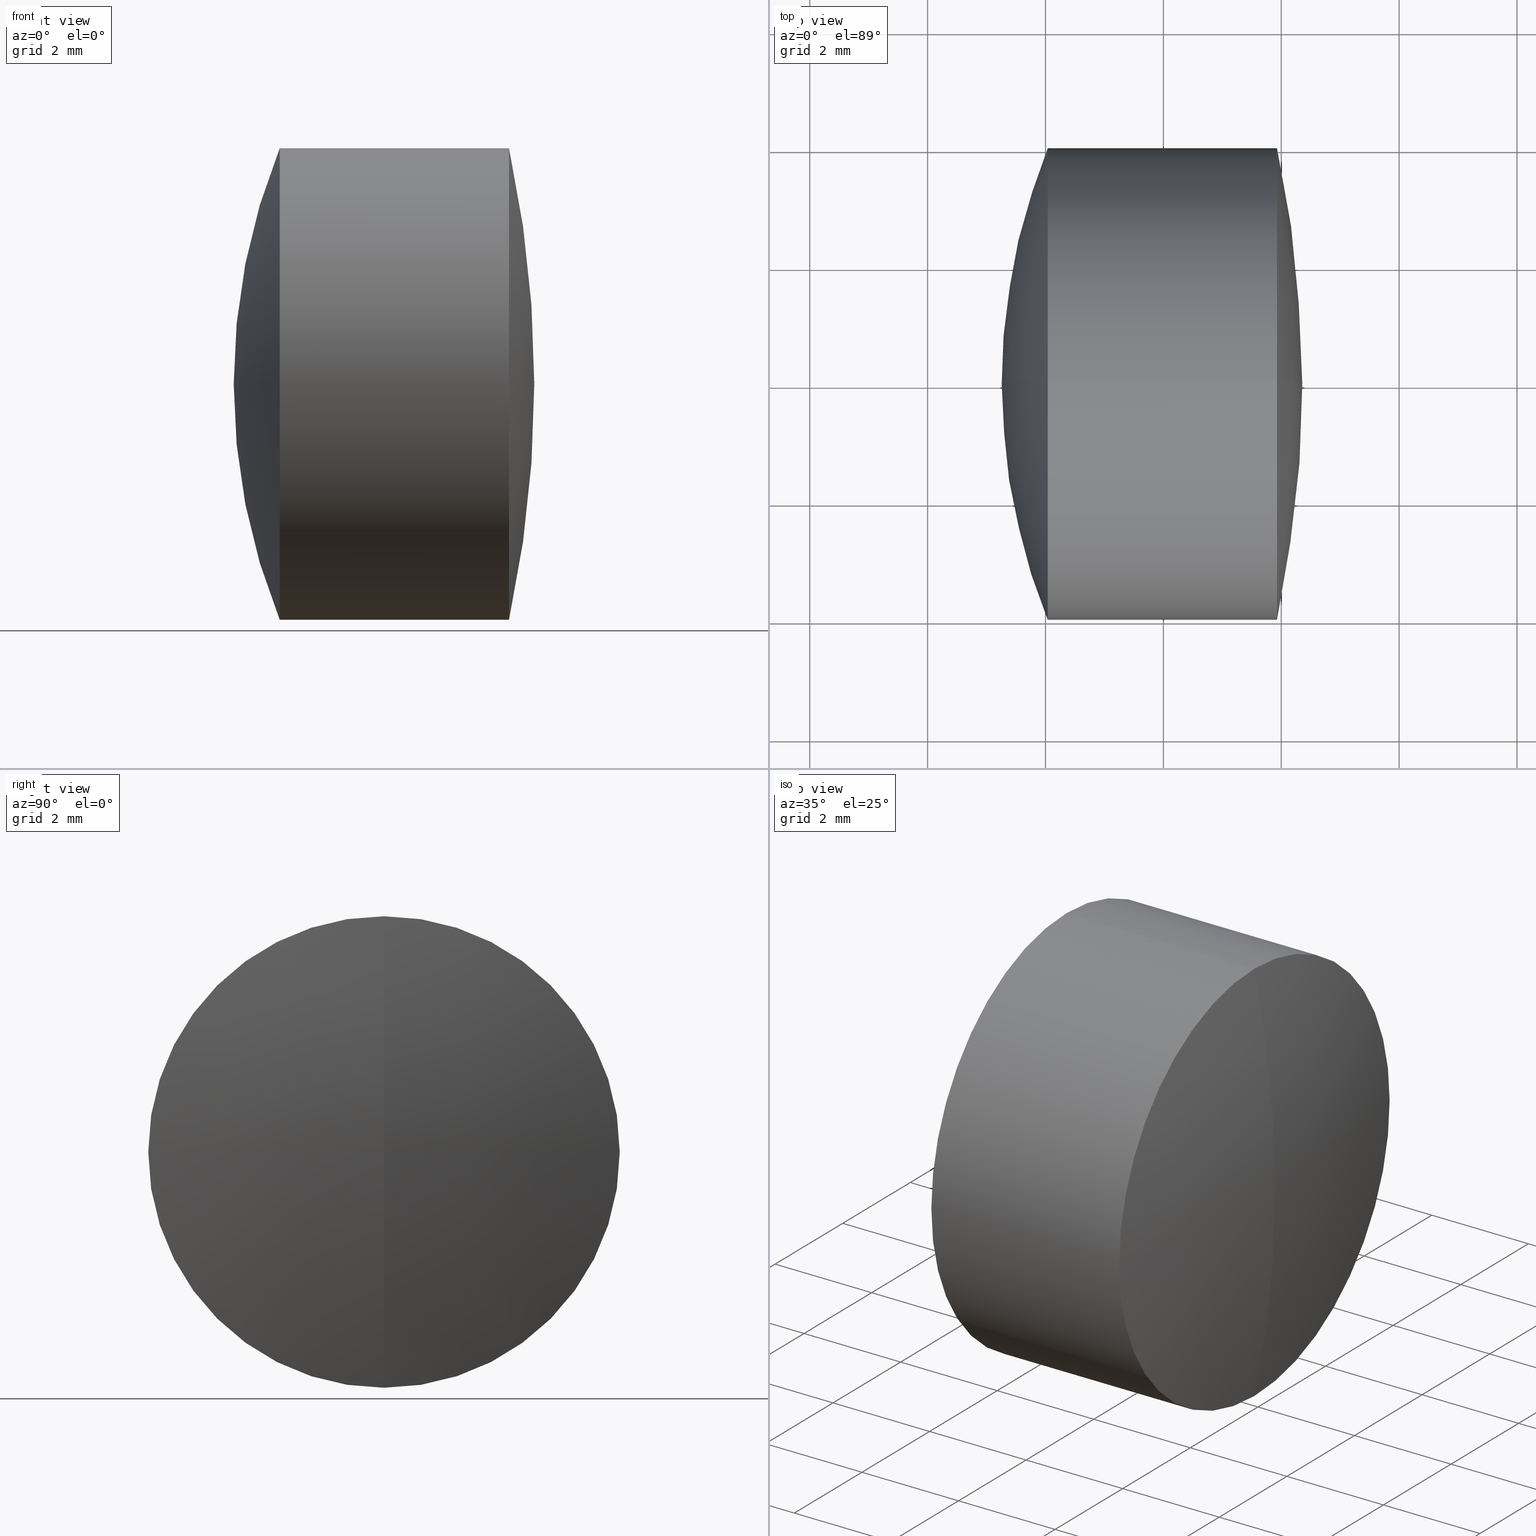
[diagram: canonical four-view strip — front | top / right | iso, engineering-drawing reading convention]
A machine part, canonical four-view strip (front | top / right | iso — engineering-drawing reading convention). The complete STEP part file that produces these views, byte-faithful:
ISO-10303-21;
HEADER;
FILE_DESCRIPTION (( 'STEP AP214' ),
    '1' );
FILE_NAME ('145016.STEP',
    '2019-05-08T07:21:51',
    ( 'user' ),
    ( '΢���й�' ),
    'SwSTEP 2.0',
    'SolidWorks 2016',
    '' );
FILE_SCHEMA (( 'AUTOMOTIVE_DESIGN' ));
ENDSEC;

DATA;
#1 = VERTEX_POINT ( 'NONE', #6 ) ;
#2 = CARTESIAN_POINT ( 'NONE',  ( -0.5519199926577972300, 0.0000000000000000000, 0.0000000000000000000 ) ) ;
#3 = AXIS2_PLACEMENT_3D ( 'NONE', #2, #330, #309 ) ;
#4 = DIRECTION ( 'NONE',  ( -1.000000000000000000, -0.0000000000000000000, -0.0000000000000000000 ) ) ;
#5 = SPHERICAL_SURFACE ( 'NONE', #113, 7.066000000000000700 ) ;
#6 = CARTESIAN_POINT ( 'NONE',  ( 2.356824329195886100, 0.0000000000000000000, 1.155393022655570300E-015 ) ) ;
#7 = DIRECTION ( 'NONE',  ( 0.0000000000000000000, 0.0000000000000000000, 1.000000000000000000 ) ) ;
#8 = DIRECTION ( 'NONE',  ( 0.0000000000000000000, 0.0000000000000000000, 1.000000000000000000 ) ) ;
#9 = DIRECTION ( 'NONE',  ( -0.0000000000000000000, 1.000000000000000000, 1.224646799147353200E-016 ) ) ;
#10 =( NAMED_UNIT ( * ) SI_UNIT ( $, .STERADIAN. ) SOLID_ANGLE_UNIT ( ) );
#11 = EDGE_LOOP ( 'NONE', ( #147, #213, #43 ) ) ;
#12 = MECHANICAL_DESIGN_GEOMETRIC_PRESENTATION_REPRESENTATION (  '', ( #151 ), #231 ) ;
#13 = ORIENTED_EDGE ( 'NONE', *, *, #90, .F. ) ;
#14 = DIRECTION ( 'NONE',  ( 0.0000000000000000000, 0.0000000000000000000, 1.000000000000000000 ) ) ;
#15 = CARTESIAN_POINT ( 'NONE',  ( -0.5519199926577972300, 0.0000000000000000000, 4.000000000000000900 ) ) ;
#16 = SPHERICAL_SURFACE ( 'NONE', #197, 10.64199999999999900 ) ;
#17 = EDGE_CURVE ( 'NONE', #118, #256, #261, .T. ) ;
#18 = FACE_OUTER_BOUND ( 'NONE', #26, .T. ) ;
#19 = DIRECTION ( 'NONE',  ( 0.0000000000000000000, 0.0000000000000000000, 1.000000000000000000 ) ) ;
#20 = ORIENTED_EDGE ( 'NONE', *, *, #61, .T. ) ;
#21 = ADVANCED_FACE ( 'NONE', ( #125 ), #276, .T. ) ;
#22 = AXIS2_PLACEMENT_3D ( 'NONE', #40, #92, #162 ) ;
#23 = ORIENTED_EDGE ( 'NONE', *, *, #265, .F. ) ;
#24 = DIRECTION ( 'NONE',  ( -1.000000000000000000, -0.0000000000000000000, -0.0000000000000000000 ) ) ;
#25 = EDGE_CURVE ( 'NONE', #118, #207, #69, .T. ) ;
#26 = EDGE_LOOP ( 'NONE', ( #280, #121, #179, #341 ) ) ;
#27 = CIRCLE ( 'NONE', #76, 4.000000000000000000 ) ;
#28 = EDGE_CURVE ( 'NONE', #207, #118, #103, .T. ) ;
#29 = PRESENTATION_STYLE_ASSIGNMENT (( #108 ) ) ;
#30 = FILL_AREA_STYLE_COLOUR ( '', #334 ) ;
#31 = SHAPE_DEFINITION_REPRESENTATION ( #102, #304 ) ;
#32 = VECTOR ( 'NONE', #297, 1000.000000000000000 ) ;
#33 = CARTESIAN_POINT ( 'NONE',  ( -0.5519199926577972300, 4.898587196589413800E-016, -4.000000000000000900 ) ) ;
#34 = ORIENTED_EDGE ( 'NONE', *, *, #189, .T. ) ;
#35 = CARTESIAN_POINT ( 'NONE',  ( 7.898824329195884200, 0.0000000000000000000, -4.193262327932864000E-018 ) ) ;
#36 = CARTESIAN_POINT ( 'NONE',  ( -0.8043704380087720600, 0.0000000000000000000, 0.0000000000000000000 ) ) ;
#37 = DIRECTION ( 'NONE',  ( 0.0000000000000000000, 0.0000000000000000000, 1.000000000000000000 ) ) ;
#38 = AXIS2_PLACEMENT_3D ( 'NONE', #41, #199, #7 ) ;
#39 = LINE ( 'NONE', #33, #32 ) ;
#40 = CARTESIAN_POINT ( 'NONE',  ( -0.5519199926577972300, 0.0000000000000000000, 0.0000000000000000000 ) ) ;
#41 = CARTESIAN_POINT ( 'NONE',  ( -1.962826851007154500, 0.0000000000000000000, 0.0000000000000000000 ) ) ;
#42 = EDGE_CURVE ( 'NONE', #250, #195, #135, .T. ) ;
#43 = ORIENTED_EDGE ( 'NONE', *, *, #296, .F. ) ;
#44 = ORIENTED_EDGE ( 'NONE', *, *, #167, .T. ) ;
#45 = FACE_OUTER_BOUND ( 'NONE', #219, .T. ) ;
#46 = ORIENTED_EDGE ( 'NONE', *, *, #255, .T. ) ;
#47 = VERTEX_POINT ( 'NONE', #270 ) ;
#48 = CIRCLE ( 'NONE', #271, 10.64199999999999900 ) ;
#49 =( LENGTH_UNIT ( ) NAMED_UNIT ( * ) SI_UNIT ( .MILLI., .METRE. ) );
#50 = VERTEX_POINT ( 'NONE', #301 ) ;
#51 =( NAMED_UNIT ( * ) SI_UNIT ( $, .STERADIAN. ) SOLID_ANGLE_UNIT ( ) );
#52 = FACE_OUTER_BOUND ( 'NONE', #160, .T. ) ;
#53 = AXIS2_PLACEMENT_3D ( 'NONE', #267, #190, #14 ) ;
#54 = UNCERTAINTY_MEASURE_WITH_UNIT (LENGTH_MEASURE( 1.000000000000000100E-005 ), #49, 'distance_accuracy_value', 'NONE');
#55 = CIRCLE ( 'NONE', #326, 18.86900000000000000 ) ;
#56 = VERTEX_POINT ( 'NONE', #65 ) ;
#57 = EDGE_LOOP ( 'NONE', ( #23, #262, #277 ) ) ;
#58 = CARTESIAN_POINT ( 'NONE',  ( -16.51217567080411500, 0.0000000000000000000, 0.0000000000000000000 ) ) ;
#59 = SURFACE_STYLE_USAGE ( .BOTH. , #68 ) ;
#60 = DIRECTION ( 'NONE',  ( 0.0000000000000000000, 0.0000000000000000000, -1.000000000000000000 ) ) ;
#61 = EDGE_CURVE ( 'NONE', #250, #256, #124, .T. ) ;
#62 = EDGE_LOOP ( 'NONE', ( #332, #74, #46, #155 ) ) ;
#63 = CARTESIAN_POINT ( 'NONE',  ( -6.629175670804114500, 0.0000000000000000000, 1.127419418155393700E-016 ) ) ;
#64 = CYLINDRICAL_SURFACE ( 'NONE', #3, 4.000000000000000900 ) ;
#65 = CARTESIAN_POINT ( 'NONE',  ( 0.4368243291958864300, 0.0000000000000000000, 5.454096559542993200E-016 ) ) ;
#66 = DIRECTION ( 'NONE',  ( -1.000000000000000000, -0.0000000000000000000, -0.0000000000000000000 ) ) ;
#67 = DIRECTION ( 'NONE',  ( -1.000000000000000000, -0.0000000000000000000, -0.0000000000000000000 ) ) ;
#68 = SURFACE_SIDE_STYLE ('',( #156 ) ) ;
#69 = CIRCLE ( 'NONE', #289, 4.000000000000000000 ) ;
#70 = SURFACE_SIDE_STYLE ('',( #273 ) ) ;
#71 = EDGE_LOOP ( 'NONE', ( #75, #327, #140, #194 ) ) ;
#72 = ADVANCED_FACE ( 'NONE', ( #305 ), #5, .T. ) ;
#73 = STYLED_ITEM ( 'NONE', ( #29 ), #210 ) ;
#74 = ORIENTED_EDGE ( 'NONE', *, *, #229, .T. ) ;
#75 = ORIENTED_EDGE ( 'NONE', *, *, #25, .T. ) ;
#76 = AXIS2_PLACEMENT_3D ( 'NONE', #158, #218, #337 ) ;
#77 = CARTESIAN_POINT ( 'NONE',  ( -1.962826851007154500, 0.0000000000000000000, 3.999999999999998200 ) ) ;
#78 = CYLINDRICAL_SURFACE ( 'NONE', #22, 4.000000000000000900 ) ;
#79 = SURFACE_STYLE_USAGE ( .BOTH. , #318 ) ;
#80 = EDGE_CURVE ( 'NONE', #222, #50, #153, .T. ) ;
#81 = FILL_AREA_STYLE ('',( #212 ) ) ;
#82 = ORIENTED_EDGE ( 'NONE', *, *, #28, .F. ) ;
#83 = CIRCLE ( 'NONE', #339, 7.066000000000000700 ) ;
#84 = DIRECTION ( 'NONE',  ( 0.0000000000000000000, -1.224646799147353000E-016, 1.000000000000000000 ) ) ;
#85 = CARTESIAN_POINT ( 'NONE',  ( -16.51217567080411500, 0.0000000000000000000, 0.0000000000000000000 ) ) ;
#86 = PRODUCT_CONTEXT ( 'NONE', #245, 'mechanical' ) ;
#87 = DIRECTION ( 'NONE',  ( 0.0000000000000000000, 1.000000000000000000, 0.0000000000000000000 ) ) ;
#88 = DIRECTION ( 'NONE',  ( 0.0000000000000000000, -1.224646799147353500E-016, 1.000000000000000000 ) ) ;
#89 = SPHERICAL_SURFACE ( 'NONE', #128, 7.066000000000000700 ) ;
#90 = EDGE_CURVE ( 'NONE', #222, #315, #100, .T. ) ;
#91 = CARTESIAN_POINT ( 'NONE',  ( -16.51217567080411500, 0.0000000000000000000, 0.0000000000000000000 ) ) ;
#92 = DIRECTION ( 'NONE',  ( -1.000000000000000000, -0.0000000000000000000, -0.0000000000000000000 ) ) ;
#93 = AXIS2_PLACEMENT_3D ( 'NONE', #144, #114, #192 ) ;
#94 = ORIENTED_EDGE ( 'NONE', *, *, #17, .T. ) ;
#95 = COLOUR_RGB ( '',1.000000000000000000, 1.000000000000000000, 1.000000000000000000 ) ;
#96 = ORIENTED_EDGE ( 'NONE', *, *, #229, .F. ) ;
#97 = MECHANICAL_DESIGN_GEOMETRIC_PRESENTATION_REPRESENTATION (  '', ( #73 ), #288 ) ;
#98 = ADVANCED_FACE ( 'NONE', ( #313 ), #78, .T. ) ;
#99 = DIRECTION ( 'NONE',  ( 0.0000000000000000000, 0.0000000000000000000, 1.000000000000000000 ) ) ;
#100 = CIRCLE ( 'NONE', #346, 10.64199999999999900 ) ;
#101 = MECHANICAL_DESIGN_GEOMETRIC_PRESENTATION_REPRESENTATION (  '', ( #263 ), #117 ) ;
#102 = PRODUCT_DEFINITION_SHAPE ( 'NONE', 'NONE',  #171 ) ;
#103 = CIRCLE ( 'NONE', #146, 4.000000000000000000 ) ;
#104 = LINE ( 'NONE', #300, #345 ) ;
#105 = EDGE_CURVE ( 'NONE', #47, #50, #234, .T. ) ;
#106 = CIRCLE ( 'NONE', #159, 18.86900000000000000 ) ;
#107 = AXIS2_PLACEMENT_3D ( 'NONE', #246, #278, #19 ) ;
#108 = SURFACE_STYLE_USAGE ( .BOTH. , #70 ) ;
#109 =( LENGTH_UNIT ( ) NAMED_UNIT ( * ) SI_UNIT ( .MILLI., .METRE. ) );
#110 = CARTESIAN_POINT ( 'NONE',  ( 0.4368243291958864300, 0.0000000000000000000, 5.454096559542993200E-016 ) ) ;
#111 = SPHERICAL_SURFACE ( 'NONE', #215, 7.066000000000000700 ) ;
#112 = DIRECTION ( 'NONE',  ( 0.0000000000000000000, 1.000000000000000000, 0.0000000000000000000 ) ) ;
#113 = AXIS2_PLACEMENT_3D ( 'NONE', #214, #115, #8 ) ;
#114 = DIRECTION ( 'NONE',  ( 0.0000000000000000000, 1.000000000000000000, 0.0000000000000000000 ) ) ;
#115 = DIRECTION ( 'NONE',  ( 0.0000000000000000000, 1.000000000000000000, 0.0000000000000000000 ) ) ;
#116 = EDGE_LOOP ( 'NONE', ( #226, #20, #182 ) ) ;
#117 =( GEOMETRIC_REPRESENTATION_CONTEXT ( 3 ) GLOBAL_UNCERTAINTY_ASSIGNED_CONTEXT ( ( #178 ) ) GLOBAL_UNIT_ASSIGNED_CONTEXT ( ( #230, #132, #323 ) ) REPRESENTATION_CONTEXT ( 'NONE', 'WORKASPACE' ) );
#118 = VERTEX_POINT ( 'NONE', #259 ) ;
#119 =( NAMED_UNIT ( * ) SI_UNIT ( $, .STERADIAN. ) SOLID_ANGLE_UNIT ( ) );
#120 = ADVANCED_FACE ( 'NONE', ( #18 ), #122, .T. ) ;
#121 = ORIENTED_EDGE ( 'NONE', *, *, #105, .T. ) ;
#122 = CYLINDRICAL_SURFACE ( 'NONE', #123, 4.000000000000000000 ) ;
#123 = AXIS2_PLACEMENT_3D ( 'NONE', #161, #67, #37 ) ;
#124 = CIRCLE ( 'NONE', #181, 7.066000000000000700 ) ;
#125 = FACE_OUTER_BOUND ( 'NONE', #62, .T. ) ;
#126 = CIRCLE ( 'NONE', #311, 4.000000000000000000 ) ;
#127 = ORIENTED_EDGE ( 'NONE', *, *, #322, .F. ) ;
#128 = AXIS2_PLACEMENT_3D ( 'NONE', #295, #196, #193 ) ;
#129 = FACE_OUTER_BOUND ( 'NONE', #308, .T. ) ;
#130 = CARTESIAN_POINT ( 'NONE',  ( 1.927975114913448800, 0.0000000000000000000, 0.0000000000000000000 ) ) ;
#131 = APPLICATION_CONTEXT ( 'automotive_design' ) ;
#132 =( NAMED_UNIT ( * ) PLANE_ANGLE_UNIT ( ) SI_UNIT ( $, .RADIAN. ) );
#133 = CARTESIAN_POINT ( 'NONE',  ( -6.629175670804114500, 0.0000000000000000000, 1.127419418155393700E-016 ) ) ;
#134 = EDGE_CURVE ( 'NONE', #207, #195, #39, .T. ) ;
#135 = CIRCLE ( 'NONE', #335, 7.066000000000000700 ) ;
#136 = MANIFOLD_SOLID_BREP ( '��ת1', #254 ) ;
#137 = CLOSED_SHELL ( 'NONE', ( #174, #98, #249, #203, #150, #340 ) ) ;
#138 = DIRECTION ( 'NONE',  ( -0.0000000000000000000, 1.000000000000000000, 1.224646799147353200E-016 ) ) ;
#139 = DIRECTION ( 'NONE',  ( 0.0000000000000000000, -1.000000000000000000, 0.0000000000000000000 ) ) ;
#140 = ORIENTED_EDGE ( 'NONE', *, *, #180, .F. ) ;
#141 = DIRECTION ( 'NONE',  ( 0.0000000000000000000, 1.000000000000000000, 0.0000000000000000000 ) ) ;
#142 = DIRECTION ( 'NONE',  ( 0.0000000000000000000, 0.0000000000000000000, 1.000000000000000000 ) ) ;
#143 = CARTESIAN_POINT ( 'NONE',  ( -16.51217567080411500, 0.0000000000000000000, 0.0000000000000000000 ) ) ;
#144 = CARTESIAN_POINT ( 'NONE',  ( 7.898824329195884200, 0.0000000000000000000, -4.193262327932864000E-018 ) ) ;
#145 = CARTESIAN_POINT ( 'NONE',  ( -6.629175670804114500, 0.0000000000000000000, 1.127419418155393700E-016 ) ) ;
#146 = AXIS2_PLACEMENT_3D ( 'NONE', #320, #66, #272 ) ;
#147 = ORIENTED_EDGE ( 'NONE', *, *, #241, .F. ) ;
#148 = PRESENTATION_STYLE_ASSIGNMENT (( #59 ) ) ;
#149 = ORIENTED_EDGE ( 'NONE', *, *, #189, .F. ) ;
#150 = ADVANCED_FACE ( 'NONE', ( #52 ), #64, .T. ) ;
#151 = STYLED_ITEM ( 'NONE', ( #257 ), #136 ) ;
#152 = PRODUCT_DEFINITION_CONTEXT ( 'detailed design', #131, 'design' ) ;
#153 = CIRCLE ( 'NONE', #38, 4.000000000000000000 ) ;
#154 = AXIS2_PLACEMENT_3D ( 'NONE', #232, #238, #225 ) ;
#155 = ORIENTED_EDGE ( 'NONE', *, *, #314, .F. ) ;
#156 = SURFACE_STYLE_FILL_AREA ( #329 ) ;
#157 = FILL_AREA_STYLE ('',( #30 ) ) ;
#158 = CARTESIAN_POINT ( 'NONE',  ( -0.8043704380087720600, 0.0000000000000000000, 0.0000000000000000000 ) ) ;
#159 = AXIS2_PLACEMENT_3D ( 'NONE', #91, #317, #293 ) ;
#160 = EDGE_LOOP ( 'NONE', ( #248, #228, #94, #211 ) ) ;
#161 = CARTESIAN_POINT ( 'NONE',  ( -9.702612178336682500, 0.0000000000000000000, 0.0000000000000000000 ) ) ;
#162 = DIRECTION ( 'NONE',  ( 0.0000000000000000000, 0.0000000000000000000, 1.000000000000000000 ) ) ;
#163 = EDGE_LOOP ( 'NONE', ( #292, #198, #13 ) ) ;
#164 = FACE_OUTER_BOUND ( 'NONE', #163, .T. ) ;
#165 = DIRECTION ( 'NONE',  ( 0.0000000000000000000, -1.000000000000000000, 0.0000000000000000000 ) ) ;
#166 = DIRECTION ( 'NONE',  ( 0.0000000000000000000, 0.0000000000000000000, 1.000000000000000000 ) ) ;
#167 = EDGE_CURVE ( 'NONE', #195, #256, #176, .T. ) ;
#168 = COLOUR_RGB ( '',1.000000000000000000, 1.000000000000000000, 1.000000000000000000 ) ;
#169 = CARTESIAN_POINT ( 'NONE',  ( -6.629175670804114500, 0.0000000000000000000, 1.127419418155393700E-016 ) ) ;
#170 = VECTOR ( 'NONE', #244, 1000.000000000000000 ) ;
#171 = PRODUCT_DEFINITION ( 'δ֪', '', #235, #152 ) ;
#172 = CARTESIAN_POINT ( 'NONE',  ( -9.702612178336682500, 4.898587196589412800E-016, -4.000000000000000000 ) ) ;
#173 = ORIENTED_EDGE ( 'NONE', *, *, #241, .T. ) ;
#174 = ADVANCED_FACE ( 'NONE', ( #129 ), #269, .T. ) ;
#175 = CIRCLE ( 'NONE', #177, 4.000000000000000000 ) ;
#176 = CIRCLE ( 'NONE', #53, 4.000000000000001800 ) ;
#177 = AXIS2_PLACEMENT_3D ( 'NONE', #258, #24, #191 ) ;
#178 = UNCERTAINTY_MEASURE_WITH_UNIT (LENGTH_MEASURE( 1.000000000000000100E-005 ), #230, 'distance_accuracy_value', 'NONE');
#179 = ORIENTED_EDGE ( 'NONE', *, *, #80, .F. ) ;
#180 = EDGE_CURVE ( 'NONE', #256, #195, #319, .T. ) ;
#181 = AXIS2_PLACEMENT_3D ( 'NONE', #233, #240, #325 ) ;
#182 = ORIENTED_EDGE ( 'NONE', *, *, #180, .T. ) ;
#183 =( NAMED_UNIT ( * ) PLANE_ANGLE_UNIT ( ) SI_UNIT ( $, .RADIAN. ) );
#184 = DIRECTION ( 'NONE',  ( 0.0000000000000000000, -1.224646799147353200E-016, 1.000000000000000000 ) ) ;
#185 =( NAMED_UNIT ( * ) PLANE_ANGLE_UNIT ( ) SI_UNIT ( $, .RADIAN. ) );
#186 = CARTESIAN_POINT ( 'NONE',  ( -6.629175670804114500, 0.0000000000000000000, 1.127419418155393700E-016 ) ) ;
#187 = CARTESIAN_POINT ( 'NONE',  ( 1.927975114913448800, 4.898587196589413800E-016, -4.000000000000000000 ) ) ;
#188 = DIRECTION ( 'NONE',  ( 0.0000000000000000000, 0.0000000000000000000, 1.000000000000000000 ) ) ;
#189 = EDGE_CURVE ( 'NONE', #1, #207, #55, .T. ) ;
#190 = DIRECTION ( 'NONE',  ( -1.000000000000000000, -0.0000000000000000000, -0.0000000000000000000 ) ) ;
#191 = DIRECTION ( 'NONE',  ( 0.0000000000000000000, 0.0000000000000000000, 1.000000000000000000 ) ) ;
#192 = DIRECTION ( 'NONE',  ( 0.0000000000000000000, 0.0000000000000000000, 1.000000000000000000 ) ) ;
#193 = DIRECTION ( 'NONE',  ( 0.0000000000000000000, 0.0000000000000000000, 1.000000000000000000 ) ) ;
#194 = ORIENTED_EDGE ( 'NONE', *, *, #17, .F. ) ;
#195 = VERTEX_POINT ( 'NONE', #274 ) ;
#196 = DIRECTION ( 'NONE',  ( 0.0000000000000000000, 1.000000000000000000, 0.0000000000000000000 ) ) ;
#197 = AXIS2_PLACEMENT_3D ( 'NONE', #35, #87, #247 ) ;
#198 = ORIENTED_EDGE ( 'NONE', *, *, #265, .T. ) ;
#199 = DIRECTION ( 'NONE',  ( -1.000000000000000000, -0.0000000000000000000, -0.0000000000000000000 ) ) ;
#200 = ORIENTED_EDGE ( 'NONE', *, *, #61, .F. ) ;
#201 = DIRECTION ( 'NONE',  ( -0.0000000000000000000, 1.000000000000000000, 1.224646799147353200E-016 ) ) ;
#202 = ORIENTED_EDGE ( 'NONE', *, *, #25, .F. ) ;
#203 = ADVANCED_FACE ( 'NONE', ( #204 ), #209, .F. ) ;
#204 = FACE_OUTER_BOUND ( 'NONE', #116, .T. ) ;
#205 = CARTESIAN_POINT ( 'NONE',  ( -2.743175670804114000, 0.0000000000000000000, 6.474412994983736900E-016 ) ) ;
#206 = SURFACE_STYLE_FILL_AREA ( #157 ) ;
#207 = VERTEX_POINT ( 'NONE', #187 ) ;
#208 = VERTEX_POINT ( 'NONE', #264 ) ;
#209 = SPHERICAL_SURFACE ( 'NONE', #285, 7.066000000000000700 ) ;
#210 = MANIFOLD_SOLID_BREP ( '��ת3', #137 ) ;
#211 = ORIENTED_EDGE ( 'NONE', *, *, #167, .F. ) ;
#212 = FILL_AREA_STYLE_COLOUR ( '', #168 ) ;
#213 = ORIENTED_EDGE ( 'NONE', *, *, #322, .T. ) ;
#214 = CARTESIAN_POINT ( 'NONE',  ( -6.629175670804114500, 0.0000000000000000000, 1.127419418155393700E-016 ) ) ;
#215 = AXIS2_PLACEMENT_3D ( 'NONE', #169, #217, #142 ) ;
#216 = FACE_OUTER_BOUND ( 'NONE', #286, .T. ) ;
#217 = DIRECTION ( 'NONE',  ( 0.0000000000000000000, 1.000000000000000000, 0.0000000000000000000 ) ) ;
#218 = DIRECTION ( 'NONE',  ( -1.000000000000000000, -0.0000000000000000000, -0.0000000000000000000 ) ) ;
#219 = EDGE_LOOP ( 'NONE', ( #200, #298, #44 ) ) ;
#220 = DIRECTION ( 'NONE',  ( -1.000000000000000000, -0.0000000000000000000, -0.0000000000000000000 ) ) ;
#221 = PRODUCT_RELATED_PRODUCT_CATEGORY ( 'part', '', ( #343 ) ) ;
#222 = VERTEX_POINT ( 'NONE', #77 ) ;
#223 = DIRECTION ( 'NONE',  ( 0.0000000000000000000, 1.000000000000000000, 0.0000000000000000000 ) ) ;
#224 = ADVANCED_FACE ( 'NONE', ( #216 ), #89, .T. ) ;
#225 = DIRECTION ( 'NONE',  ( 1.000000000000000000, 0.0000000000000000000, 0.0000000000000000000 ) ) ;
#226 = ORIENTED_EDGE ( 'NONE', *, *, #42, .F. ) ;
#227 = AXIS2_PLACEMENT_3D ( 'NONE', #58, #223, #99 ) ;
#228 = ORIENTED_EDGE ( 'NONE', *, *, #28, .T. ) ;
#229 = EDGE_CURVE ( 'NONE', #47, #208, #27, .T. ) ;
#230 =( LENGTH_UNIT ( ) NAMED_UNIT ( * ) SI_UNIT ( .MILLI., .METRE. ) );
#231 =( GEOMETRIC_REPRESENTATION_CONTEXT ( 3 ) GLOBAL_UNCERTAINTY_ASSIGNED_CONTEXT ( ( #342 ) ) GLOBAL_UNIT_ASSIGNED_CONTEXT ( ( #109, #294, #10 ) ) REPRESENTATION_CONTEXT ( 'NONE', 'WORKASPACE' ) );
#232 = CARTESIAN_POINT ( 'NONE',  ( 0.0000000000000000000, 0.0000000000000000000, 0.0000000000000000000 ) ) ;
#233 = CARTESIAN_POINT ( 'NONE',  ( -6.629175670804114500, 0.0000000000000000000, 1.127419418155393700E-016 ) ) ;
#234 = LINE ( 'NONE', #172, #170 ) ;
#235 = PRODUCT_DEFINITION_FORMATION_WITH_SPECIFIED_SOURCE ( '�κ�', '', #343, .NOT_KNOWN. ) ;
#236 = DIRECTION ( 'NONE',  ( -1.000000000000000000, -0.0000000000000000000, -0.0000000000000000000 ) ) ;
#237 = DIRECTION ( 'NONE',  ( -0.0000000000000000000, 1.000000000000000000, 1.224646799147353200E-016 ) ) ;
#238 = DIRECTION ( 'NONE',  ( 0.0000000000000000000, 0.0000000000000000000, 1.000000000000000000 ) ) ;
#239 = FILL_AREA_STYLE_COLOUR ( '', #95 ) ;
#240 = DIRECTION ( 'NONE',  ( 0.0000000000000000000, -1.000000000000000000, 0.0000000000000000000 ) ) ;
#241 = EDGE_CURVE ( 'NONE', #56, #208, #83, .T. ) ;
#242 = CARTESIAN_POINT ( 'NONE',  ( -0.8043704380087720600, 0.0000000000000000000, 0.0000000000000000000 ) ) ;
#243 =( GEOMETRIC_REPRESENTATION_CONTEXT ( 3 ) GLOBAL_UNCERTAINTY_ASSIGNED_CONTEXT ( ( #54 ) ) GLOBAL_UNIT_ASSIGNED_CONTEXT ( ( #49, #183, #51 ) ) REPRESENTATION_CONTEXT ( 'NONE', 'WORKASPACE' ) );
#244 = DIRECTION ( 'NONE',  ( -1.000000000000000000, -0.0000000000000000000, -0.0000000000000000000 ) ) ;
#245 = APPLICATION_CONTEXT ( 'automotive_design' ) ;
#246 = CARTESIAN_POINT ( 'NONE',  ( -9.702612178336682500, 0.0000000000000000000, 0.0000000000000000000 ) ) ;
#247 = DIRECTION ( 'NONE',  ( 0.0000000000000000000, 0.0000000000000000000, 1.000000000000000000 ) ) ;
#248 = ORIENTED_EDGE ( 'NONE', *, *, #134, .F. ) ;
#249 = ADVANCED_FACE ( 'NONE', ( #45 ), #111, .F. ) ;
#250 = VERTEX_POINT ( 'NONE', #110 ) ;
#251 = PRESENTATION_LAYER_ASSIGNMENT (  '', '', ( #73 ) ) ;
#252 = PRESENTATION_LAYER_ASSIGNMENT (  '', '', ( #263 ) ) ;
#253 = ORIENTED_EDGE ( 'NONE', *, *, #307, .F. ) ;
#254 = CLOSED_SHELL ( 'NONE', ( #72, #120, #310, #282, #21, #224 ) ) ;
#255 = EDGE_CURVE ( 'NONE', #208, #222, #104, .T. ) ;
#256 = VERTEX_POINT ( 'NONE', #333 ) ;
#257 = PRESENTATION_STYLE_ASSIGNMENT (( #79 ) ) ;
#258 = CARTESIAN_POINT ( 'NONE',  ( -1.962826851007154500, 0.0000000000000000000, 0.0000000000000000000 ) ) ;
#259 = CARTESIAN_POINT ( 'NONE',  ( 1.927975114913448800, 0.0000000000000000000, 4.000000000000000000 ) ) ;
#260 = AXIS2_PLACEMENT_3D ( 'NONE', #186, #201, #347 ) ;
#261 = LINE ( 'NONE', #15, #344 ) ;
#262 = ORIENTED_EDGE ( 'NONE', *, *, #314, .T. ) ;
#263 = STYLED_ITEM ( 'NONE', ( #148 ), #304 ) ;
#264 = CARTESIAN_POINT ( 'NONE',  ( -0.8043704380087720600, 0.0000000000000000000, 4.000000000000000000 ) ) ;
#265 = EDGE_CURVE ( 'NONE', #50, #315, #48, .T. ) ;
#266 = CARTESIAN_POINT ( 'NONE',  ( 7.898824329195884200, 0.0000000000000000000, -4.193262327932864000E-018 ) ) ;
#267 = CARTESIAN_POINT ( 'NONE',  ( -0.8043704380087720600, 0.0000000000000000000, 0.0000000000000000000 ) ) ;
#268 = ORIENTED_EDGE ( 'NONE', *, *, #307, .T. ) ;
#269 = SPHERICAL_SURFACE ( 'NONE', #316, 18.86900000000000000 ) ;
#270 = CARTESIAN_POINT ( 'NONE',  ( -0.8043704380087720600, 4.898587196589412800E-016, -4.000000000000000000 ) ) ;
#271 = AXIS2_PLACEMENT_3D ( 'NONE', #266, #9, #84 ) ;
#272 = DIRECTION ( 'NONE',  ( 0.0000000000000000000, 0.0000000000000000000, 1.000000000000000000 ) ) ;
#273 = SURFACE_STYLE_FILL_AREA ( #81 ) ;
#274 = CARTESIAN_POINT ( 'NONE',  ( -0.8043704380087720600, 4.898587196589415800E-016, -4.000000000000001800 ) ) ;
#275 = UNCERTAINTY_MEASURE_WITH_UNIT (LENGTH_MEASURE( 1.000000000000000100E-005 ), #303, 'distance_accuracy_value', 'NONE');
#276 = CYLINDRICAL_SURFACE ( 'NONE', #107, 4.000000000000000000 ) ;
#277 = ORIENTED_EDGE ( 'NONE', *, *, #90, .T. ) ;
#278 = DIRECTION ( 'NONE',  ( -1.000000000000000000, -0.0000000000000000000, -0.0000000000000000000 ) ) ;
#279 = PRESENTATION_LAYER_ASSIGNMENT (  '', '', ( #151 ) ) ;
#280 = ORIENTED_EDGE ( 'NONE', *, *, #296, .T. ) ;
#281 = FACE_OUTER_BOUND ( 'NONE', #57, .T. ) ;
#282 = ADVANCED_FACE ( 'NONE', ( #281 ), #338, .T. ) ;
#283 = APPLICATION_PROTOCOL_DEFINITION ( 'draft international standard', 'automotive_design', 1998, #245 ) ;
#284 = CIRCLE ( 'NONE', #260, 7.066000000000000700 ) ;
#285 = AXIS2_PLACEMENT_3D ( 'NONE', #133, #112, #291 ) ;
#286 = EDGE_LOOP ( 'NONE', ( #127, #173, #96 ) ) ;
#287 = EDGE_LOOP ( 'NONE', ( #149, #268, #82 ) ) ;
#288 =( GEOMETRIC_REPRESENTATION_CONTEXT ( 3 ) GLOBAL_UNCERTAINTY_ASSIGNED_CONTEXT ( ( #275 ) ) GLOBAL_UNIT_ASSIGNED_CONTEXT ( ( #303, #185, #119 ) ) REPRESENTATION_CONTEXT ( 'NONE', 'WORKASPACE' ) );
#289 = AXIS2_PLACEMENT_3D ( 'NONE', #130, #290, #188 ) ;
#290 = DIRECTION ( 'NONE',  ( -1.000000000000000000, -0.0000000000000000000, -0.0000000000000000000 ) ) ;
#291 = DIRECTION ( 'NONE',  ( 0.0000000000000000000, 0.0000000000000000000, 1.000000000000000000 ) ) ;
#292 = ORIENTED_EDGE ( 'NONE', *, *, #80, .T. ) ;
#293 = DIRECTION ( 'NONE',  ( 0.0000000000000000000, 0.0000000000000000000, -1.000000000000000000 ) ) ;
#294 =( NAMED_UNIT ( * ) PLANE_ANGLE_UNIT ( ) SI_UNIT ( $, .RADIAN. ) );
#295 = CARTESIAN_POINT ( 'NONE',  ( -6.629175670804114500, 0.0000000000000000000, 1.127419418155393700E-016 ) ) ;
#296 = EDGE_CURVE ( 'NONE', #208, #47, #126, .T. ) ;
#297 = DIRECTION ( 'NONE',  ( -1.000000000000000000, -0.0000000000000000000, -0.0000000000000000000 ) ) ;
#298 = ORIENTED_EDGE ( 'NONE', *, *, #42, .T. ) ;
#299 = AXIS2_PLACEMENT_3D ( 'NONE', #242, #220, #306 ) ;
#300 = CARTESIAN_POINT ( 'NONE',  ( -9.702612178336682500, 0.0000000000000000000, 4.000000000000000000 ) ) ;
#301 = CARTESIAN_POINT ( 'NONE',  ( -1.962826851007154500, 4.898587196589411800E-016, -3.999999999999998200 ) ) ;
#302 = FACE_OUTER_BOUND ( 'NONE', #287, .T. ) ;
#303 =( LENGTH_UNIT ( ) NAMED_UNIT ( * ) SI_UNIT ( .MILLI., .METRE. ) );
#304 = ADVANCED_BREP_SHAPE_REPRESENTATION ( '145016', ( #136, #210, #154 ), #243 ) ;
#305 = FACE_OUTER_BOUND ( 'NONE', #11, .T. ) ;
#306 = DIRECTION ( 'NONE',  ( 0.0000000000000000000, 0.0000000000000000000, 1.000000000000000000 ) ) ;
#307 = EDGE_CURVE ( 'NONE', #1, #118, #106, .T. ) ;
#308 = EDGE_LOOP ( 'NONE', ( #253, #34, #202 ) ) ;
#309 = DIRECTION ( 'NONE',  ( 0.0000000000000000000, 0.0000000000000000000, 1.000000000000000000 ) ) ;
#310 = ADVANCED_FACE ( 'NONE', ( #164 ), #16, .T. ) ;
#311 = AXIS2_PLACEMENT_3D ( 'NONE', #36, #236, #331 ) ;
#312 = SPHERICAL_SURFACE ( 'NONE', #227, 18.86900000000000000 ) ;
#313 = FACE_OUTER_BOUND ( 'NONE', #71, .T. ) ;
#314 = EDGE_CURVE ( 'NONE', #50, #222, #175, .T. ) ;
#315 = VERTEX_POINT ( 'NONE', #205 ) ;
#316 = AXIS2_PLACEMENT_3D ( 'NONE', #85, #141, #166 ) ;
#317 = DIRECTION ( 'NONE',  ( 0.0000000000000000000, -1.000000000000000000, 0.0000000000000000000 ) ) ;
#318 = SURFACE_SIDE_STYLE ('',( #206 ) ) ;
#319 = CIRCLE ( 'NONE', #299, 4.000000000000001800 ) ;
#320 = CARTESIAN_POINT ( 'NONE',  ( 1.927975114913448800, 0.0000000000000000000, 0.0000000000000000000 ) ) ;
#321 = APPLICATION_PROTOCOL_DEFINITION ( 'draft international standard', 'automotive_design', 1998, #131 ) ;
#322 = EDGE_CURVE ( 'NONE', #56, #47, #284, .T. ) ;
#323 =( NAMED_UNIT ( * ) SI_UNIT ( $, .STERADIAN. ) SOLID_ANGLE_UNIT ( ) );
#324 = CARTESIAN_POINT ( 'NONE',  ( 7.898824329195884200, 0.0000000000000000000, -4.193262327932864000E-018 ) ) ;
#325 = DIRECTION ( 'NONE',  ( 0.0000000000000000000, 0.0000000000000000000, -1.000000000000000000 ) ) ;
#326 = AXIS2_PLACEMENT_3D ( 'NONE', #143, #138, #184 ) ;
#327 = ORIENTED_EDGE ( 'NONE', *, *, #134, .T. ) ;
#328 = DIRECTION ( 'NONE',  ( 0.0000000000000000000, 0.0000000000000000000, -1.000000000000000000 ) ) ;
#329 = FILL_AREA_STYLE ('',( #239 ) ) ;
#330 = DIRECTION ( 'NONE',  ( -1.000000000000000000, -0.0000000000000000000, -0.0000000000000000000 ) ) ;
#331 = DIRECTION ( 'NONE',  ( 0.0000000000000000000, 0.0000000000000000000, 1.000000000000000000 ) ) ;
#332 = ORIENTED_EDGE ( 'NONE', *, *, #105, .F. ) ;
#333 = CARTESIAN_POINT ( 'NONE',  ( -0.8043704380087720600, 0.0000000000000000000, 4.000000000000001800 ) ) ;
#334 = COLOUR_RGB ( '',1.000000000000000000, 1.000000000000000000, 1.000000000000000000 ) ;
#335 = AXIS2_PLACEMENT_3D ( 'NONE', #145, #237, #88 ) ;
#336 = DIRECTION ( 'NONE',  ( -1.000000000000000000, -0.0000000000000000000, -0.0000000000000000000 ) ) ;
#337 = DIRECTION ( 'NONE',  ( 0.0000000000000000000, 0.0000000000000000000, 1.000000000000000000 ) ) ;
#338 = SPHERICAL_SURFACE ( 'NONE', #93, 10.64199999999999900 ) ;
#339 = AXIS2_PLACEMENT_3D ( 'NONE', #63, #165, #60 ) ;
#340 = ADVANCED_FACE ( 'NONE', ( #302 ), #312, .T. ) ;
#341 = ORIENTED_EDGE ( 'NONE', *, *, #255, .F. ) ;
#342 = UNCERTAINTY_MEASURE_WITH_UNIT (LENGTH_MEASURE( 1.000000000000000100E-005 ), #109, 'distance_accuracy_value', 'NONE');
#343 = PRODUCT ( '145016', '145016', '', ( #86 ) ) ;
#344 = VECTOR ( 'NONE', #4, 1000.000000000000000 ) ;
#345 = VECTOR ( 'NONE', #336, 1000.000000000000000 ) ;
#346 = AXIS2_PLACEMENT_3D ( 'NONE', #324, #139, #328 ) ;
#347 = DIRECTION ( 'NONE',  ( 0.0000000000000000000, -1.224646799147353500E-016, 1.000000000000000000 ) ) ;
ENDSEC;
END-ISO-10303-21;
